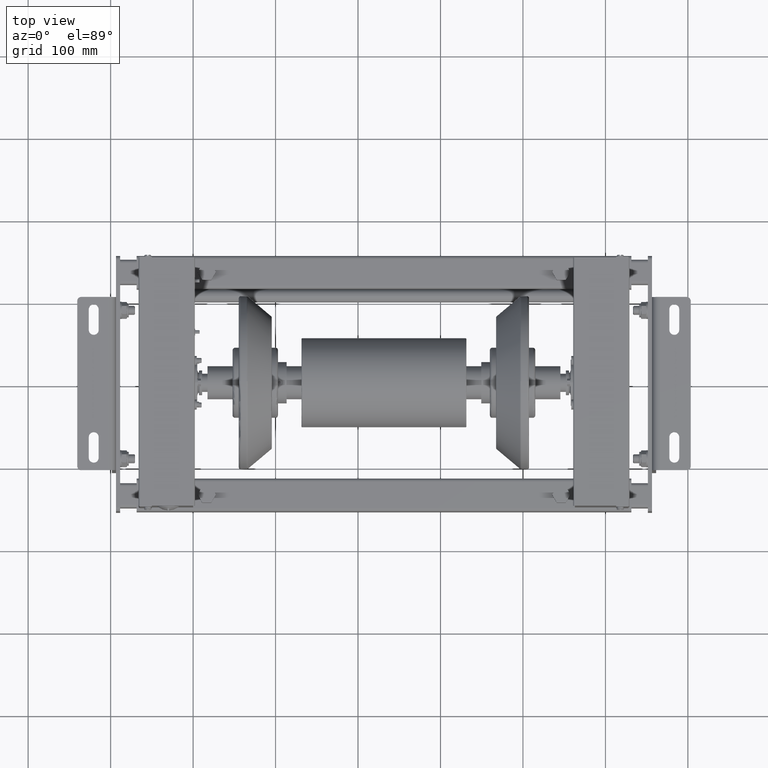
[diagram: clean part render]
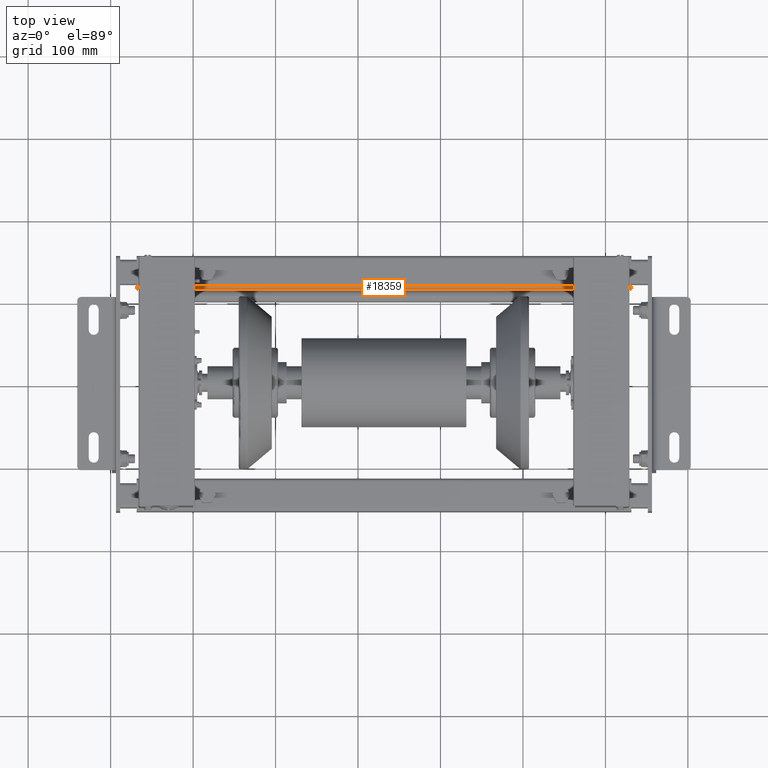
[diagram: same view with one face highlighted and labeled with its STEP entity id]
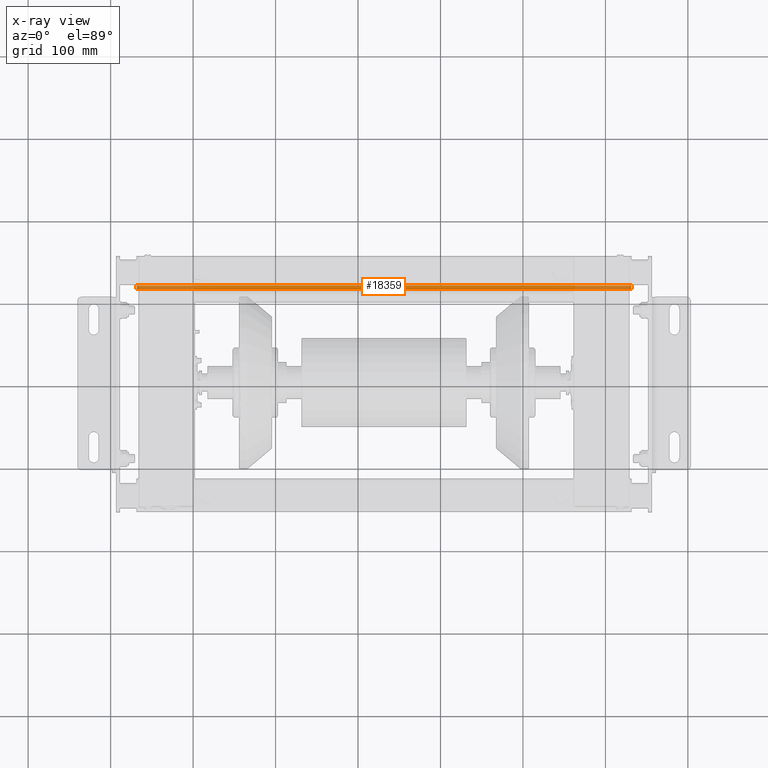
[diagram: x-ray of the same camera — body ghosted, the highlighted face saturated]
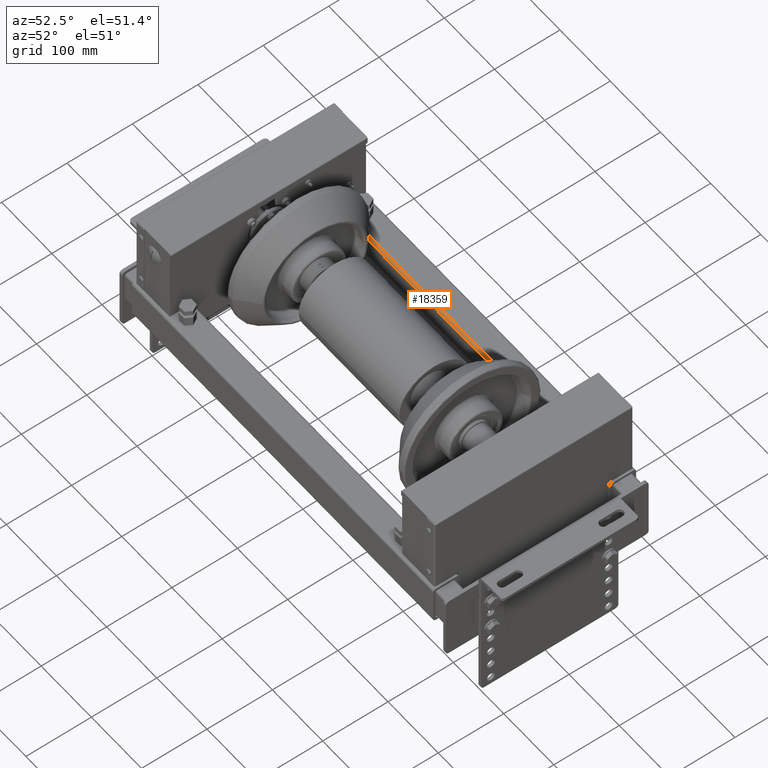
[diagram: same view with one face highlighted and labeled with its STEP entity id]
A machine part, top view. The second image highlights one B-rep face of the part: STEP entity #18359.
The next image is the same camera in x-ray: the body ghosted, the highlighted face saturated — about 23% of this face is hidden behind the body in this view.
A second angle (auxiliary view) of the same face is appended — the face is thin or edge-on in the first view.
In plain terms, the highlighted cylindrical surface (edge-blend (fillet) strip) has radius 4 mm, axis along (1, 0, -0).
Its self-contained STEP definition (entity closure, byte-faithful):
#18318=CARTESIAN_POINT('',(-16.0,26.0,-405.0));
#18319=DIRECTION('',(0.0,0.0,1.0));
#18320=DIRECTION('',(1.0,0.0,0.0));
#18321=AXIS2_PLACEMENT_3D('',#18318,#18319,#18320);
#18322=CYLINDRICAL_SURFACE('',#18321,4.0);
#18323=CARTESIAN_POINT('',(-20.0,26.0,195.0));
#18324=VERTEX_POINT('',#18323);
#18325=CARTESIAN_POINT('',(-16.0,30.0,195.0));
#18326=VERTEX_POINT('',#18325);
#18327=CARTESIAN_POINT('',(-16.0,26.0,195.0));
#18328=DIRECTION('',(0.0,0.0,-1.0));
#18329=DIRECTION('',(1.0,0.0,0.0));
#18330=AXIS2_PLACEMENT_3D('',#18327,#18328,#18329);
#18331=CIRCLE('',#18330,4.0);
#18332=EDGE_CURVE('',#18324,#18326,#18331,.T.);
#18333=ORIENTED_EDGE('',*,*,#18332,.T.);
#18334=CARTESIAN_POINT('',(-16.0,30.0,-405.0));
#18335=VERTEX_POINT('',#18334);
#18336=CARTESIAN_POINT('',(-16.0,30.0,-405.0));
#18337=DIRECTION('',(0.0,0.0,1.0));
#18338=VECTOR('',#18337,600.0);
#18339=LINE('',#18336,#18338);
#18340=EDGE_CURVE('',#18335,#18326,#18339,.T.);
#18341=ORIENTED_EDGE('',*,*,#18340,.F.);
#18342=CARTESIAN_POINT('',(-20.0,26.0,-405.0));
#18343=VERTEX_POINT('',#18342);
#18344=CARTESIAN_POINT('',(-16.0,26.0,-405.0));
#18345=DIRECTION('',(0.0,0.0,-1.0));
#18346=DIRECTION('',(1.0,0.0,0.0));
#18347=AXIS2_PLACEMENT_3D('',#18344,#18345,#18346);
#18348=CIRCLE('',#18347,4.0);
#18349=EDGE_CURVE('',#18343,#18335,#18348,.T.);
#18350=ORIENTED_EDGE('',*,*,#18349,.F.);
#18351=CARTESIAN_POINT('',(-20.0,26.0,-405.0));
#18352=DIRECTION('',(0.0,0.0,1.0));
#18353=VECTOR('',#18352,600.0);
#18354=LINE('',#18351,#18353);
#18355=EDGE_CURVE('',#18343,#18324,#18354,.T.);
#18356=ORIENTED_EDGE('',*,*,#18355,.T.);
#18357=EDGE_LOOP('',(#18333,#18341,#18350,#18356));
#18358=FACE_OUTER_BOUND('',#18357,.T.);
#18359=ADVANCED_FACE('',(#18358),#18322,.T.);